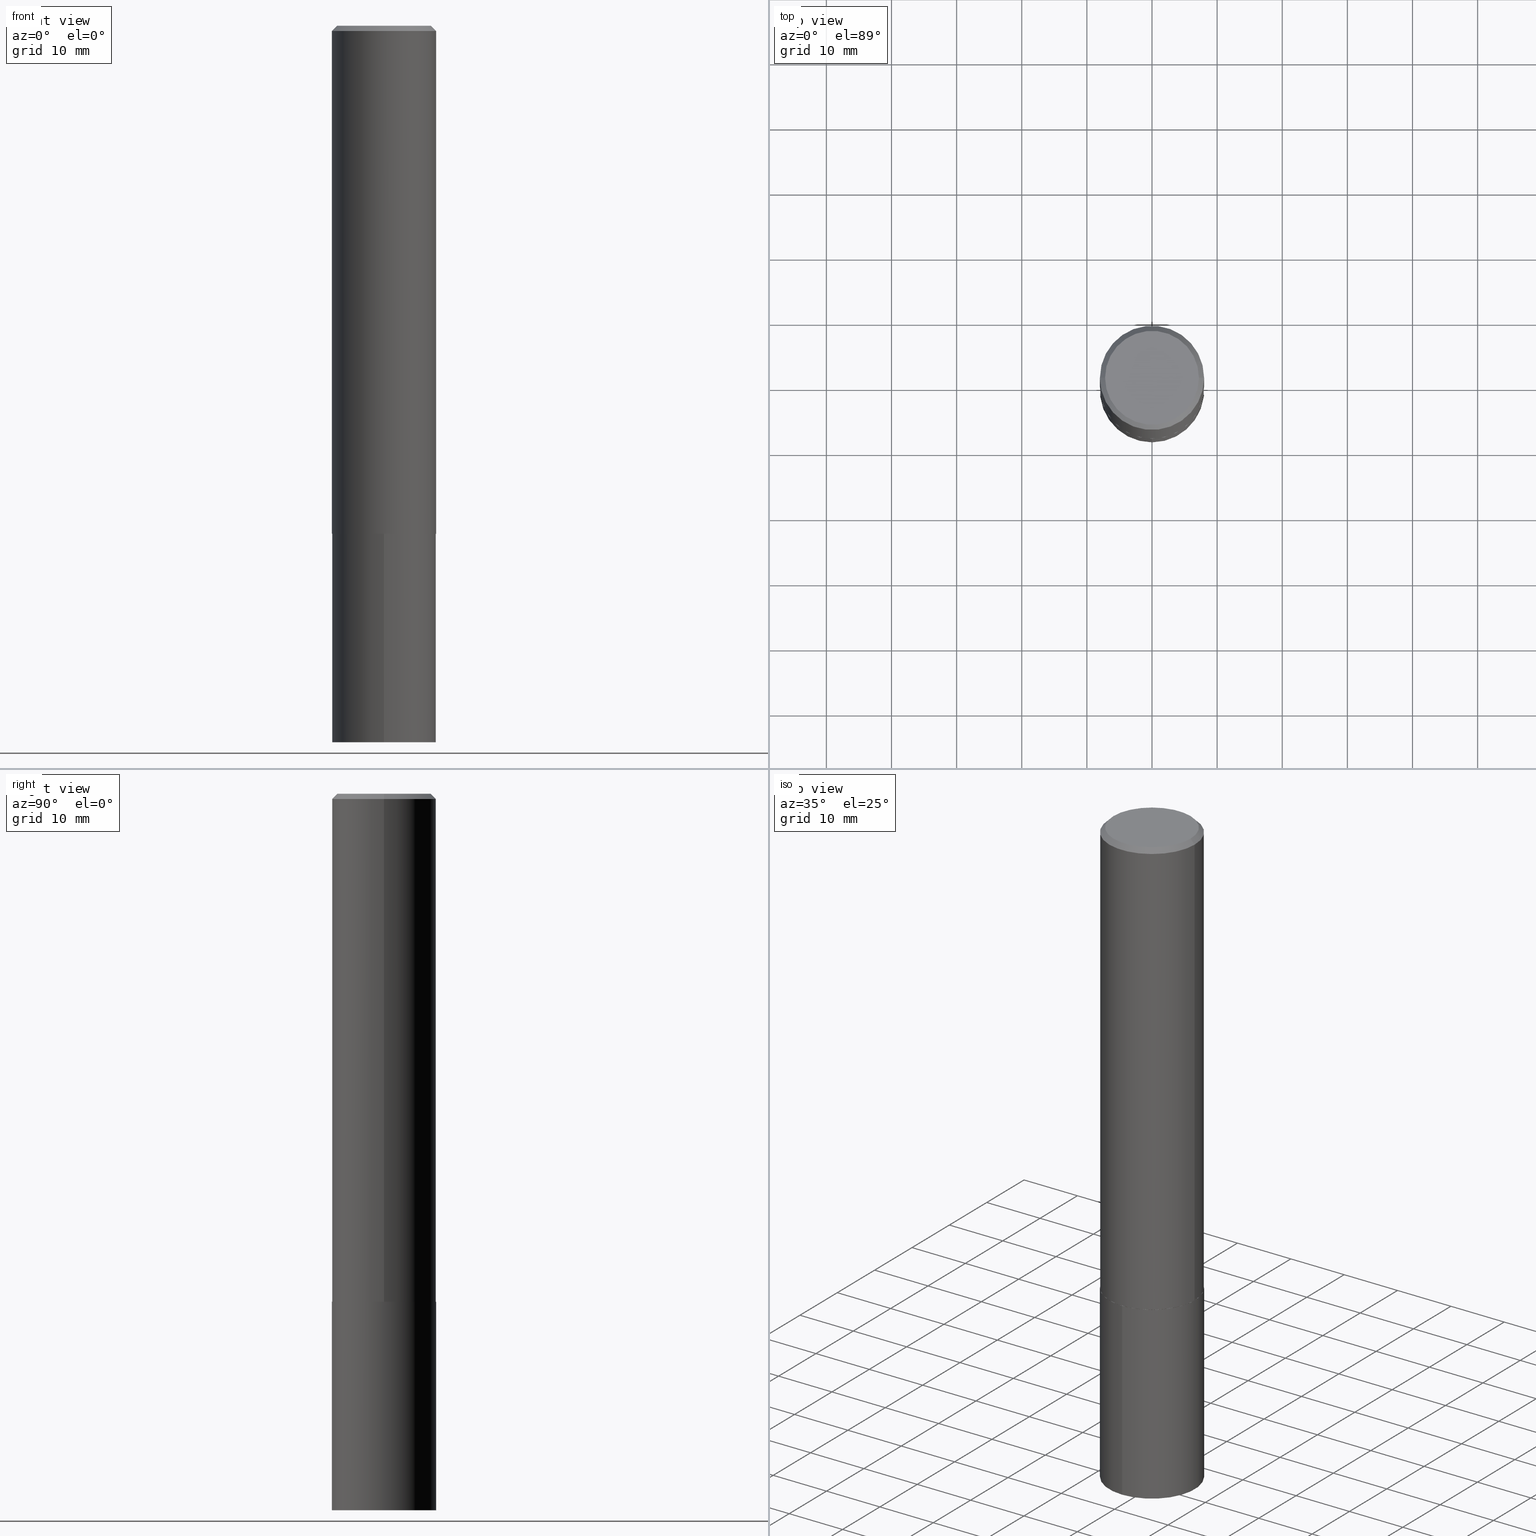
[diagram: canonical four-view strip — front | top / right | iso, engineering-drawing reading convention]
A machine part, canonical four-view strip (front | top / right | iso — engineering-drawing reading convention). The complete STEP part file that produces these views, byte-faithful:
ISO-10303-21;
HEADER;
FILE_DESCRIPTION (( 'STEP AP203' ),
    '1' );
FILE_NAME ('67176.STEP',
    '2024-04-23T12:52:31',
    ( '' ),
    ( '' ),
    'SwSTEP 2.0',
    'SolidWorks 2023',
    '' );
FILE_SCHEMA (( 'CONFIG_CONTROL_DESIGN' ));
ENDSEC;

DATA;
#1 = DIRECTION ( 'NONE',  ( 1.000000000000000000, -6.982962677686267499E-15, 0.000000000000000000 ) ) ;
#2 = DIRECTION ( 'NONE',  ( -6.982962677686265922E-15, -1.000000000000000000, 3.469564049740292770E-15 ) ) ;
#3 =( GEOMETRIC_REPRESENTATION_CONTEXT ( 3 ) GLOBAL_UNCERTAINTY_ASSIGNED_CONTEXT ( ( #295 ) ) GLOBAL_UNIT_ASSIGNED_CONTEXT ( ( #103, #358, #45 ) ) REPRESENTATION_CONTEXT ( 'NONE', 'WORKASPACE' ) );
#4 = DIRECTION ( 'NONE',  ( -1.000000000000000000, 6.982962677686266711E-15, 0.000000000000000000 ) ) ;
#5 = DIMENSIONAL_EXPONENTS ( 1.000000000000000000, 0.000000000000000000, 0.000000000000000000, 0.000000000000000000, 0.000000000000000000, 0.000000000000000000, 0.000000000000000000 ) ;
#6 = CARTESIAN_POINT ( 'NONE',  ( 7.642090019328596531E-31, -1.091087918388489404E-16, -0.03125000000000018041 ) ) ;
#7 = DIRECTION ( 'NONE',  ( -2.443450065282498059E-29, 3.494372290715320533E-15, 1.000000000000000000 ) ) ;
#8 = LOCAL_TIME ( 8, 52, 31.00000000000000000, #58 ) ;
#9 = CC_DESIGN_PERSON_AND_ORGANIZATION_ASSIGNMENT ( #190, #311, ( #13 ) ) ;
#10 = DIRECTION ( 'NONE',  ( -6.982962677686265922E-15, -1.000000000000000000, 3.469564049740292770E-15 ) ) ;
#11 = LINE ( 'NONE', #68, #229 ) ;
#12 = FACE_OUTER_BOUND ( 'NONE', #210, .T. ) ;
#13 = PRODUCT_DEFINITION_FORMATION_WITH_SPECIFIED_SOURCE ( 'ANY', '', #38, .NOT_KNOWN. ) ;
#14 = CARTESIAN_POINT ( 'NONE',  ( 7.509301063152699857E-29, -1.072129174718564879E-14, -3.070700000000000873 ) ) ;
#15 = CYLINDRICAL_SURFACE ( 'NONE', #197, 0.3149500000000002853 ) ;
#16 = ORIENTED_EDGE ( 'NONE', *, *, #195, .T. ) ;
#17 = CC_DESIGN_PERSON_AND_ORGANIZATION_ASSIGNMENT ( #47, #279, ( #54 ) ) ;
#18 = CARTESIAN_POINT ( 'NONE',  ( -0.2837000000000000077, 2.035620907579017403E-15, 4.818985154630794339E-18 ) ) ;
#19 = ORIENTED_EDGE ( 'NONE', *, *, #46, .T. ) ;
#20 = MECHANICAL_CONTEXT ( 'NONE', #101, 'mechanical' ) ;
#21 = CALENDAR_DATE ( 2024, 23, 4 ) ;
#22 = ORIENTED_EDGE ( 'NONE', *, *, #94, .F. ) ;
#23 = PERSON_AND_ORGANIZATION ( #109, #63 ) ;
#24 = AXIS2_PLACEMENT_3D ( 'NONE', #125, #121, #298 ) ;
#25 = LOCAL_TIME ( 8, 52, 31.00000000000000000, #309 ) ;
#26 = ORIENTED_EDGE ( 'NONE', *, *, #284, .F. ) ;
#27 = ORIENTED_EDGE ( 'NONE', *, *, #116, .F. ) ;
#28 = ORIENTED_EDGE ( 'NONE', *, *, #320, .F. ) ;
#29 = EDGE_CURVE ( 'NONE', #106, #359, #149, .T. ) ;
#30 = SHAPE_DEFINITION_REPRESENTATION ( #96, #42 ) ;
#31 = CARTESIAN_POINT ( 'NONE',  ( 7.508078328749607056E-29, -1.071954600651622650E-14, -3.070200000000000706 ) ) ;
#32 = AXIS2_PLACEMENT_3D ( 'NONE', #142, #60, #164 ) ;
#33 = DIRECTION ( 'NONE',  ( 0.7071067811863543939, -2.468850131080234027E-15, 0.7071067811867406405 ) ) ;
#34 = CARTESIAN_POINT ( 'NONE',  ( -0.3149500000000003963, -8.481691660239788936E-15, -3.070200000000000706 ) ) ;
#35 = PLANE ( 'NONE',  #271 ) ;
#36 = CLOSED_SHELL ( 'NONE', ( #156, #180, #365, #263, #348, #111, #189, #145 ) ) ;
#37 = LOCAL_TIME ( 8, 52, 31.00000000000000000, #166 ) ;
#38 = PRODUCT ( '67176', '67176', '', ( #20 ) ) ;
#39 = CARTESIAN_POINT ( 'NONE',  ( -2.199284095337214140E-15, -0.3149500000000107214, -3.070699999999999541 ) ) ;
#40 = DIRECTION ( 'NONE',  ( -2.438088387897960049E-29, 3.491481338843145188E-15, 1.000000000000000000 ) ) ;
#41 = CARTESIAN_POINT ( 'NONE',  ( 7.509301063152699857E-29, -1.072129174718564879E-14, -3.070700000000000873 ) ) ;
#42 = ADVANCED_BREP_SHAPE_REPRESENTATION ( '67176', ( #49, #291, #242 ), #3 ) ;
#43 = VECTOR ( 'NONE', #201, 39.37007874015748143 ) ;
#44 = DIRECTION ( 'NONE',  ( -2.443450065282497779E-29, 3.494372290715320533E-15, 1.000000000000000000 ) ) ;
#45 =( NAMED_UNIT ( * ) SI_UNIT ( $, .STERADIAN. ) SOLID_ANGLE_UNIT ( ) );
#46 = EDGE_CURVE ( 'NONE', #359, #244, #91, .T. ) ;
#47 = PERSON_AND_ORGANIZATION ( #109, #63 ) ;
#48 = VERTEX_POINT ( 'NONE', #137 ) ;
#49 = MANIFOLD_SOLID_BREP ( 'Body-Move/Copy2[1]', #276 ) ;
#50 =( LENGTH_UNIT ( ) NAMED_UNIT ( * ) SI_UNIT ( $, .METRE. ) );
#51 = ORIENTED_EDGE ( 'NONE', *, *, #238, .T. ) ;
#52 = APPROVAL_ROLE ( '' ) ;
#53 = ORIENTED_EDGE ( 'NONE', *, *, #302, .F. ) ;
#54 = PRODUCT_DEFINITION ( 'UNKNOWN', '', #13, #75 ) ;
#55 = EDGE_LOOP ( 'NONE', ( #364, #76, #248, #246 ) ) ;
#56 = CC_DESIGN_APPROVAL ( #69, ( #203 ) ) ;
#57 = ORIENTED_EDGE ( 'NONE', *, *, #302, .T. ) ;
#58 = COORDINATED_UNIVERSAL_TIME_OFFSET ( 5, 0, .BEHIND. ) ;
#59 = PLANE ( 'NONE',  #215 ) ;
#60 = DIRECTION ( 'NONE',  ( -2.445468806185136597E-29, 3.491481338843145583E-15, 1.000000000000000000 ) ) ;
#61 = CARTESIAN_POINT ( 'NONE',  ( 1.058804814540864683E-28, -1.512420083348695034E-14, -4.330700000000000216 ) ) ;
#62 = CIRCLE ( 'NONE', #89, 0.3149500000000000632 ) ;
#63 = ORGANIZATION ( 'UNSPECIFIED', 'UNSPECIFIED', '' ) ;
#64 = ADVANCED_FACE ( 'NONE', ( #85 ), #226, .T. ) ;
#65 = CARTESIAN_POINT ( 'NONE',  ( -5.892338936576605744E-47, 8.412698369802303245E-33, 2.409492577322419881E-18 ) ) ;
#66 = CARTESIAN_POINT ( 'NONE',  ( 1.583676628505946195E-28, -7.607737719022868426E-15, -4.330700000000000216 ) ) ;
#67 = DIRECTION ( 'NONE',  ( -2.445468806185136597E-29, 3.491481338843145583E-15, 1.000000000000000000 ) ) ;
#68 = CARTESIAN_POINT ( 'NONE',  ( 0.3149500000000000632, -2.269822636236993252E-15, -0.03125000000000018041 ) ) ;
#69 = APPROVAL ( #264, 'UNSPECIFIED' ) ;
#70 = CARTESIAN_POINT ( 'NONE',  ( 0.3149500000000000632, -2.308392887176138972E-15, -0.03125000000000018041 ) ) ;
#71 = DIRECTION ( 'NONE',  ( 6.982962677686265922E-15, 1.000000000000000000, -3.494372290715320533E-15 ) ) ;
#72 = CC_DESIGN_APPROVAL ( #107, ( #54 ) ) ;
#73 = DIRECTION ( 'NONE',  ( 1.000000000000000000, -6.982962677686267499E-15, 0.000000000000000000 ) ) ;
#74 = EDGE_CURVE ( 'NONE', #82, #281, #316, .T. ) ;
#75 = DESIGN_CONTEXT ( 'detailed design', #308, 'design' ) ;
#76 = ORIENTED_EDGE ( 'NONE', *, *, #94, .T. ) ;
#77 = ORIENTED_EDGE ( 'NONE', *, *, #29, .F. ) ;
#78 = AXIS2_PLACEMENT_3D ( 'NONE', #113, #7, #343 ) ;
#79 = APPROVAL_PERSON_ORGANIZATION ( #217, #250, #105 ) ;
#80 = ORIENTED_EDGE ( 'NONE', *, *, #353, .T. ) ;
#81 = DIRECTION ( 'NONE',  ( 1.000000000000000000, 0.000000000000000000, 0.000000000000000000 ) ) ;
#82 = VERTEX_POINT ( 'NONE', #115 ) ;
#83 = DIRECTION ( 'NONE',  ( -0.7071067811865462405, 2.468850131082243256E-15, -0.7071067811865487940 ) ) ;
#84 = CC_DESIGN_PERSON_AND_ORGANIZATION_ASSIGNMENT ( #356, #360, ( #38 ) ) ;
#85 = FACE_OUTER_BOUND ( 'NONE', #214, .T. ) ;
#86 = DIRECTION ( 'NONE',  ( 2.438088387897960049E-29, -3.491481338843145188E-15, -1.000000000000000000 ) ) ;
#87 = CALENDAR_DATE ( 2024, 23, 4 ) ;
#88 = CARTESIAN_POINT ( 'NONE',  ( 7.509301063152699857E-29, -1.072129174718564879E-14, -3.070700000000000873 ) ) ;
#89 = AXIS2_PLACEMENT_3D ( 'NONE', #181, #326, #146 ) ;
#90 = AXIS2_PLACEMENT_3D ( 'NONE', #273, #243, #73 ) ;
#91 = LINE ( 'NONE', #165, #258 ) ;
#92 = DIRECTION ( 'NONE',  ( -2.443450065282498339E-29, 3.494372290715320533E-15, 1.000000000000000000 ) ) ;
#93 = CARTESIAN_POINT ( 'NONE',  ( 0.000000000000000000, 0.000000000000000000, 0.000000000000000000 ) ) ;
#94 = EDGE_CURVE ( 'NONE', #48, #331, #257, .T. ) ;
#95 = AXIS2_PLACEMENT_3D ( 'NONE', #41, #327, #10 ) ;
#96 = PRODUCT_DEFINITION_SHAPE ( 'NONE', 'NONE',  #54 ) ;
#97 = CARTESIAN_POINT ( 'NONE',  ( -2.199284095337214140E-15, -0.3149500000000107214, -3.070699999999999541 ) ) ;
#98 = CARTESIAN_POINT ( 'NONE',  ( 7.509301063152699857E-29, -1.072129174718564879E-14, -3.070700000000000873 ) ) ;
#99 = ADVANCED_FACE ( 'NONE', ( #172 ), #265, .T. ) ;
#100 = DIRECTION ( 'NONE',  ( 1.000000000000000000, -6.982962677686265922E-15, 4.876176775795935793E-29 ) ) ;
#101 = APPLICATION_CONTEXT ( 'configuration controlled 3d designs of mechanical parts and assemblies' ) ;
#102 = AXIS2_PLACEMENT_3D ( 'NONE', #204, #67, #294 ) ;
#103 =( CONVERSION_BASED_UNIT ( 'INCH', #339 ) LENGTH_UNIT ( ) NAMED_UNIT ( #5 ) );
#104 = ORIENTED_EDGE ( 'NONE', *, *, #29, .T. ) ;
#105 = APPROVAL_ROLE ( '' ) ;
#106 = VERTEX_POINT ( 'NONE', #194 ) ;
#107 = APPROVAL ( #208, 'UNSPECIFIED' ) ;
#108 = ORIENTED_EDGE ( 'NONE', *, *, #238, .F. ) ;
#109 = PERSON ( 'UNSPECIFIED', 'UNSPECIFIED', 'UNSPECIFIED', ('UNSPECIFIED'), ('UNSPECIFIED'), ('UNSPECIFIED') ) ;
#110 = ORIENTED_EDGE ( 'NONE', *, *, #185, .T. ) ;
#111 = ADVANCED_FACE ( 'NONE', ( #230 ), #344, .T. ) ;
#112 = DIRECTION ( 'NONE',  ( -2.445468806185136597E-29, 3.491481338843145583E-15, 1.000000000000000000 ) ) ;
#113 = CARTESIAN_POINT ( 'NONE',  ( 7.509301063152699857E-29, -1.072129174718564879E-14, -3.070700000000000873 ) ) ;
#114 = DIRECTION ( 'NONE',  ( -2.445468806185136597E-29, 3.491481338843145583E-15, 1.000000000000000000 ) ) ;
#115 = CARTESIAN_POINT ( 'NONE',  ( 0.3144500000000005069, -1.291708436118409881E-14, -3.070700000000000873 ) ) ;
#116 = EDGE_CURVE ( 'NONE', #331, #281, #138, .T. ) ;
#117 = DIRECTION ( 'NONE',  ( 2.445468806185136597E-29, -3.491481338843145583E-15, -1.000000000000000000 ) ) ;
#118 = CIRCLE ( 'NONE', #102, 0.2837000000000000077 ) ;
#119 = DIRECTION ( 'NONE',  ( -2.445468806185136597E-29, 3.491481338843145583E-15, 1.000000000000000000 ) ) ;
#120 = CARTESIAN_POINT ( 'NONE',  ( 7.508078328749607056E-29, -1.071954600651622650E-14, -3.070200000000000706 ) ) ;
#121 = DIRECTION ( 'NONE',  ( 2.445468806185136597E-29, -3.491481338843145583E-15, -1.000000000000000000 ) ) ;
#122 = AXIS2_PLACEMENT_3D ( 'NONE', #88, #112, #321 ) ;
#123 = LINE ( 'NONE', #352, #43 ) ;
#124 = EDGE_CURVE ( 'NONE', #199, #274, #287, .T. ) ;
#125 = CARTESIAN_POINT ( 'NONE',  ( 7.642090019328596531E-31, -1.091087918388489404E-16, -0.03125000000000018041 ) ) ;
#126 = DIRECTION ( 'NONE',  ( -2.445468806185136597E-29, 3.491481338843145583E-15, 1.000000000000000000 ) ) ;
#127 = DATE_AND_TIME ( #21, #25 ) ;
#128 = EDGE_CURVE ( 'NONE', #281, #331, #168, .T. ) ;
#129 = ORIENTED_EDGE ( 'NONE', *, *, #255, .F. ) ;
#130 = APPROVAL_DATE_TIME ( #213, #250 ) ;
#131 = ORIENTED_EDGE ( 'NONE', *, *, #235, .T. ) ;
#132 = VECTOR ( 'NONE', #301, 39.37007874015748143 ) ;
#133 = AXIS2_PLACEMENT_3D ( 'NONE', #14, #351, #299 ) ;
#134 = COORDINATED_UNIVERSAL_TIME_OFFSET ( 5, 0, .BEHIND. ) ;
#135 = CARTESIAN_POINT ( 'NONE',  ( 0.000000000000000000, 0.000000000000000000, 0.000000000000000000 ) ) ;
#136 = DATE_AND_TIME ( #87, #37 ) ;
#137 = CARTESIAN_POINT ( 'NONE',  ( -0.3144500000000005069, -8.484340887413899348E-15, -3.070700000000000873 ) ) ;
#138 = CIRCLE ( 'NONE', #32, 0.3149500000000003963 ) ;
#139 = PERSON_AND_ORGANIZATION ( #109, #63 ) ;
#140 = DIRECTION ( 'NONE',  ( -1.000000000000000000, 6.982962677686265922E-15, -4.876176775795935793E-29 ) ) ;
#141 = DIRECTION ( 'NONE',  ( -2.443450065282498059E-29, 3.494372290715320533E-15, 1.000000000000000000 ) ) ;
#142 = CARTESIAN_POINT ( 'NONE',  ( 7.508078328749607056E-29, -1.071954600651622650E-14, -3.070200000000000706 ) ) ;
#143 = CARTESIAN_POINT ( 'NONE',  ( 7.509301063152699857E-29, -1.072129174718564879E-14, -3.070700000000000873 ) ) ;
#144 = AXIS2_PLACEMENT_3D ( 'NONE', #98, #119, #231 ) ;
#145 = ADVANCED_FACE ( 'NONE', ( #200 ), #317, .F. ) ;
#146 = DIRECTION ( 'NONE',  ( 1.000000000000000000, -6.982962677686266711E-15, 0.000000000000000000 ) ) ;
#147 = CARTESIAN_POINT ( 'NONE',  ( 2.237854346276525915E-15, 0.3149499999999849087, -4.330700000000001104 ) ) ;
#148 = DIRECTION ( 'NONE',  ( 0.7071067811865462405, -7.319954787623251312E-15, -0.7071067811865487940 ) ) ;
#149 = CIRCLE ( 'NONE', #240, 0.2837000000000000077 ) ;
#150 = CARTESIAN_POINT ( 'NONE',  ( -2.199284095337183375E-15, -0.3149500000000151068, -4.330699999999998440 ) ) ;
#151 = DIRECTION ( 'NONE',  ( 1.000000000000000000, -6.982962677686267499E-15, 0.000000000000000000 ) ) ;
#152 = EDGE_LOOP ( 'NONE', ( #77, #312, #80, #173 ) ) ;
#153 = COORDINATED_UNIVERSAL_TIME_OFFSET ( 5, 0, .BEHIND. ) ;
#154 = EDGE_LOOP ( 'NONE', ( #278, #241, #131, #212 ) ) ;
#155 = VECTOR ( 'NONE', #33, 39.37007874015748143 ) ;
#156 = ADVANCED_FACE ( 'NONE', ( #262 ), #182, .T. ) ;
#157 = ORIENTED_EDGE ( 'NONE', *, *, #297, .T. ) ;
#158 = DIRECTION ( 'NONE',  ( 0.000000000000000000, 0.000000000000000000, 1.000000000000000000 ) ) ;
#159 = EDGE_LOOP ( 'NONE', ( #51, #104 ) ) ;
#160 = ORIENTED_EDGE ( 'NONE', *, *, #124, .T. ) ;
#161 = CC_DESIGN_DATE_AND_TIME_ASSIGNMENT ( #127, #305, ( #54 ) ) ;
#162 = CIRCLE ( 'NONE', #133, 0.3149500000000000077 ) ;
#163 = PERSON_AND_ORGANIZATION_ROLE ( 'classification_officer' ) ;
#164 = DIRECTION ( 'NONE',  ( 1.000000000000000000, -6.982962677686267499E-15, 0.000000000000000000 ) ) ;
#165 = CARTESIAN_POINT ( 'NONE',  ( -0.3149500000000000632, 2.090175303498441559E-15, -0.03125000000000018041 ) ) ;
#166 = COORDINATED_UNIVERSAL_TIME_OFFSET ( 5, 0, .BEHIND. ) ;
#167 = VERTEX_POINT ( 'NONE', #283 ) ;
#168 = CIRCLE ( 'NONE', #269, 0.3149500000000003963 ) ;
#169 = EDGE_CURVE ( 'NONE', #82, #48, #249, .T. ) ;
#170 = DATE_AND_TIME ( #191, #8 ) ;
#171 = CIRCLE ( 'NONE', #355, 0.3149500000000000632 ) ;
#172 = FACE_OUTER_BOUND ( 'NONE', #313, .T. ) ;
#173 = ORIENTED_EDGE ( 'NONE', *, *, #46, .F. ) ;
#174 = FACE_OUTER_BOUND ( 'NONE', #333, .T. ) ;
#175 = ADVANCED_FACE ( 'NONE', ( #222 ), #59, .F. ) ;
#176 = CARTESIAN_POINT ( 'NONE',  ( 3.783565416908376271E-29, -1.605675724831132483E-14, -3.070700000000000873 ) ) ;
#177 = AXIS2_PLACEMENT_3D ( 'NONE', #268, #232, #328 ) ;
#178 = DIRECTION ( 'NONE',  ( -2.445468806185136877E-29, 3.491481338843145188E-15, 1.000000000000000000 ) ) ;
#179 = DIRECTION ( 'NONE',  ( 1.000000000000000000, -6.982962677686267499E-15, 4.876176775795936353E-29 ) ) ;
#180 = ADVANCED_FACE ( 'NONE', ( #272 ), #15, .T. ) ;
#181 = CARTESIAN_POINT ( 'NONE',  ( 7.642090019328596531E-31, -1.091087918388489404E-16, -0.03125000000000018041 ) ) ;
#182 = CONICAL_SURFACE ( 'NONE', #363, 0.3149500000000000632, 0.7853981633974465026 ) ;
#183 = CONICAL_SURFACE ( 'NONE', #192, 0.3149500000000003963, 0.7853981633971751641 ) ;
#184 = ORIENTED_EDGE ( 'NONE', *, *, #128, .T. ) ;
#185 = EDGE_CURVE ( 'NONE', #244, #187, #62, .T. ) ;
#186 = APPROVAL_STATUS ( 'not_yet_approved' ) ;
#187 = VERTEX_POINT ( 'NONE', #70 ) ;
#188 = AXIS2_PLACEMENT_3D ( 'NONE', #65, #86, #140 ) ;
#189 = ADVANCED_FACE ( 'NONE', ( #12 ), #345, .T. ) ;
#190 = PERSON_AND_ORGANIZATION ( #109, #63 ) ;
#191 = CALENDAR_DATE ( 2024, 23, 4 ) ;
#192 = AXIS2_PLACEMENT_3D ( 'NONE', #120, #126, #151 ) ;
#193 = ORIENTED_EDGE ( 'NONE', *, *, #353, .F. ) ;
#194 = CARTESIAN_POINT ( 'NONE',  ( 0.2837000000000000077, -2.108072959102388127E-15, 4.818985154659137865E-18 ) ) ;
#195 = EDGE_CURVE ( 'NONE', #199, #167, #234, .T. ) ;
#196 = DIRECTION ( 'NONE',  ( 1.000000000000000000, -6.982962677686267499E-15, 4.876309930827607477E-29 ) ) ;
#197 = AXIS2_PLACEMENT_3D ( 'NONE', #93, #202, #179 ) ;
#198 = CIRCLE ( 'NONE', #177, 0.3149500000000000077 ) ;
#199 = VERTEX_POINT ( 'NONE', #147 ) ;
#200 = FACE_OUTER_BOUND ( 'NONE', #159, .T. ) ;
#201 = DIRECTION ( 'NONE',  ( -2.445468806185136877E-29, 3.491481338843145188E-15, 1.000000000000000000 ) ) ;
#202 = DIRECTION ( 'NONE',  ( -2.445468806185136597E-29, 3.491481338843145583E-15, 1.000000000000000000 ) ) ;
#203 = SECURITY_CLASSIFICATION ( '', '', #221 ) ;
#204 = CARTESIAN_POINT ( 'NONE',  ( -1.178467787315321149E-46, 1.682539673960460649E-32, 4.818985154644839761E-18 ) ) ;
#205 = CARTESIAN_POINT ( 'NONE',  ( -0.3149500000000000632, -3.176473052901099843E-15, -0.03125000000000018041 ) ) ;
#206 = DIRECTION ( 'NONE',  ( 1.000000000000000000, -6.982962677686266711E-15, 0.000000000000000000 ) ) ;
#207 = APPROVAL_PERSON_ORGANIZATION ( #261, #69, #225 ) ;
#208 = APPROVAL_STATUS ( 'not_yet_approved' ) ;
#209 = EDGE_CURVE ( 'NONE', #106, #187, #11, .T. ) ;
#210 = EDGE_LOOP ( 'NONE', ( #218, #108, #19, #110 ) ) ;
#211 = CALENDAR_DATE ( 2024, 23, 4 ) ;
#212 = ORIENTED_EDGE ( 'NONE', *, *, #185, .F. ) ;
#213 = DATE_AND_TIME ( #335, #319 ) ;
#214 = EDGE_LOOP ( 'NONE', ( #361, #160, #342, #306 ) ) ;
#215 = AXIS2_PLACEMENT_3D ( 'NONE', #66, #44, #350 ) ;
#216 = VECTOR ( 'NONE', #178, 39.37007874015748143 ) ;
#217 = PERSON_AND_ORGANIZATION ( #109, #63 ) ;
#218 = ORIENTED_EDGE ( 'NONE', *, *, #209, .F. ) ;
#219 = PRODUCT_RELATED_PRODUCT_CATEGORY ( 'detail', '', ( #38 ) ) ;
#220 = ORIENTED_EDGE ( 'NONE', *, *, #284, .T. ) ;
#221 = SECURITY_CLASSIFICATION_LEVEL ( 'unclassified' ) ;
#222 = FACE_OUTER_BOUND ( 'NONE', #340, .T. ) ;
#223 = CIRCLE ( 'NONE', #144, 0.3144500000000005069 ) ;
#224 = ORIENTED_EDGE ( 'NONE', *, *, #124, .F. ) ;
#225 = APPROVAL_ROLE ( '' ) ;
#226 = CYLINDRICAL_SURFACE ( 'NONE', #325, 0.3149500000000000077 ) ;
#227 = CARTESIAN_POINT ( 'NONE',  ( 0.3149500000000003963, -1.291883010185351952E-14, -3.070200000000000706 ) ) ;
#228 = EDGE_CURVE ( 'NONE', #167, #277, #162, .T. ) ;
#229 = VECTOR ( 'NONE', #148, 39.37007874015748143 ) ;
#230 = FACE_OUTER_BOUND ( 'NONE', #154, .T. ) ;
#231 = DIRECTION ( 'NONE',  ( 1.000000000000000000, -6.982962677686266711E-15, 0.000000000000000000 ) ) ;
#232 = DIRECTION ( 'NONE',  ( -2.443450065282498059E-29, 3.494372290715320533E-15, 1.000000000000000000 ) ) ;
#233 = VECTOR ( 'NONE', #315, 39.37007874015748143 ) ;
#234 = LINE ( 'NONE', #322, #132 ) ;
#235 = EDGE_CURVE ( 'NONE', #281, #187, #237, .T. ) ;
#236 = CARTESIAN_POINT ( 'NONE',  ( 0.3149500000000003963, -1.291883010185351952E-14, -3.070200000000000706 ) ) ;
#237 = LINE ( 'NONE', #270, #216 ) ;
#238 = EDGE_CURVE ( 'NONE', #359, #106, #118, .T. ) ;
#239 = APPLICATION_PROTOCOL_DEFINITION ( 'international standard', 'config_control_design', 1994, #101 ) ;
#240 = AXIS2_PLACEMENT_3D ( 'NONE', #292, #114, #196 ) ;
#241 = ORIENTED_EDGE ( 'NONE', *, *, #116, .T. ) ;
#242 = AXIS2_PLACEMENT_3D ( 'NONE', #245, #158, #81 ) ;
#243 = DIRECTION ( 'NONE',  ( -2.445468806185136597E-29, 3.491481338843145583E-15, 1.000000000000000000 ) ) ;
#244 = VERTEX_POINT ( 'NONE', #205 ) ;
#245 = CARTESIAN_POINT ( 'NONE',  ( 0.000000000000000000, 0.000000000000000000, 0.000000000000000000 ) ) ;
#246 = ORIENTED_EDGE ( 'NONE', *, *, #74, .F. ) ;
#247 = PERSON_AND_ORGANIZATION ( #109, #63 ) ;
#248 = ORIENTED_EDGE ( 'NONE', *, *, #128, .F. ) ;
#249 = CIRCLE ( 'NONE', #122, 0.3144500000000005069 ) ;
#250 = APPROVAL ( #186, 'UNSPECIFIED' ) ;
#251 = CIRCLE ( 'NONE', #95, 0.3149500000000000077 ) ;
#252 = FACE_OUTER_BOUND ( 'NONE', #55, .T. ) ;
#253 = ORIENTED_EDGE ( 'NONE', *, *, #235, .F. ) ;
#254 = DIRECTION ( 'NONE',  ( 1.000000000000000000, -6.982962677686267499E-15, 4.876176775795936353E-29 ) ) ;
#255 = EDGE_CURVE ( 'NONE', #274, #199, #198, .T. ) ;
#256 = APPROVAL_DATE_TIME ( #136, #69 ) ;
#257 = LINE ( 'NONE', #34, #233 ) ;
#258 = VECTOR ( 'NONE', #83, 39.37007874015748143 ) ;
#259 = VECTOR ( 'NONE', #92, 39.37007874015748143 ) ;
#260 = DIRECTION ( 'NONE',  ( -2.445468806185136597E-29, 3.491481338843145583E-15, 1.000000000000000000 ) ) ;
#261 = PERSON_AND_ORGANIZATION ( #109, #63 ) ;
#262 = FACE_OUTER_BOUND ( 'NONE', #152, .T. ) ;
#263 = ADVANCED_FACE ( 'NONE', ( #323 ), #354, .F. ) ;
#264 = APPROVAL_STATUS ( 'not_yet_approved' ) ;
#265 = CYLINDRICAL_SURFACE ( 'NONE', #78, 0.3149500000000000077 ) ;
#266 = DIRECTION ( 'NONE',  ( 2.443450065282497779E-29, -3.494372290715320533E-15, -1.000000000000000000 ) ) ;
#267 = FACE_OUTER_BOUND ( 'NONE', #357, .T. ) ;
#268 = CARTESIAN_POINT ( 'NONE',  ( 1.058804814540864683E-28, -1.512420083348695034E-14, -4.330700000000000216 ) ) ;
#269 = AXIS2_PLACEMENT_3D ( 'NONE', #31, #341, #1 ) ;
#270 = CARTESIAN_POINT ( 'NONE',  ( 0.3149500000000002853, -2.199284095337291843E-15, 1.535751875536931531E-29 ) ) ;
#271 = AXIS2_PLACEMENT_3D ( 'NONE', #143, #266, #71 ) ;
#272 = FACE_OUTER_BOUND ( 'NONE', #310, .T. ) ;
#273 = CARTESIAN_POINT ( 'NONE',  ( 7.508078328749607056E-29, -1.071954600651622650E-14, -3.070200000000000706 ) ) ;
#274 = VERTEX_POINT ( 'NONE', #150 ) ;
#275 = APPLICATION_PROTOCOL_DEFINITION ( 'international standard', 'config_control_design', 1994, #308 ) ;
#276 = CLOSED_SHELL ( 'NONE', ( #99, #175, #64, #280 ) ) ;
#277 = VERTEX_POINT ( 'NONE', #97 ) ;
#278 = ORIENTED_EDGE ( 'NONE', *, *, #297, .F. ) ;
#279 = PERSON_AND_ORGANIZATION_ROLE ( 'creator' ) ;
#280 = ADVANCED_FACE ( 'NONE', ( #174 ), #35, .F. ) ;
#281 = VERTEX_POINT ( 'NONE', #236 ) ;
#282 = ORIENTED_EDGE ( 'NONE', *, *, #169, .F. ) ;
#283 = CARTESIAN_POINT ( 'NONE',  ( 2.237854346276541298E-15, 0.3149499999999892941, -3.070700000000001761 ) ) ;
#284 = EDGE_CURVE ( 'NONE', #277, #167, #251, .T. ) ;
#285 = CARTESIAN_POINT ( 'NONE',  ( 7.509301063152699857E-29, -1.072129174718564879E-14, -3.070700000000000873 ) ) ;
#286 = DIRECTION ( 'NONE',  ( -6.982962677686265922E-15, -1.000000000000000000, 3.469564049740292770E-15 ) ) ;
#287 = CIRCLE ( 'NONE', #336, 0.3149500000000000077 ) ;
#288 = AXIS2_PLACEMENT_3D ( 'NONE', #176, #40, #100 ) ;
#289 = DATE_TIME_ROLE ( 'classification_date' ) ;
#290 = DIRECTION ( 'NONE',  ( -2.443450065282498059E-29, 3.494372290715320533E-15, 1.000000000000000000 ) ) ;
#291 = MANIFOLD_SOLID_BREP ( 'Body-Move/Copy2[2]', #36 ) ;
#292 = CARTESIAN_POINT ( 'NONE',  ( -1.178467787315321149E-46, 1.682539673960460649E-32, 4.818985154644839761E-18 ) ) ;
#293 = CC_DESIGN_PERSON_AND_ORGANIZATION_ASSIGNMENT ( #139, #163, ( #203 ) ) ;
#294 = DIRECTION ( 'NONE',  ( 1.000000000000000000, -6.982962677686267499E-15, 4.876309930827607477E-29 ) ) ;
#295 = UNCERTAINTY_MEASURE_WITH_UNIT (LENGTH_MEASURE( 1.000000000000000082E-05 ), #103, 'distance_accuracy_value', 'NONE');
#296 = CARTESIAN_POINT ( 'NONE',  ( -0.3149500000000003963, -8.481691660239788936E-15, -3.070200000000000706 ) ) ;
#297 = EDGE_CURVE ( 'NONE', #331, #244, #123, .T. ) ;
#298 = DIRECTION ( 'NONE',  ( -1.000000000000000000, 6.982962677686266711E-15, 0.000000000000000000 ) ) ;
#299 = DIRECTION ( 'NONE',  ( -6.982962677686265922E-15, -1.000000000000000000, 3.469564049740292770E-15 ) ) ;
#300 = APPROVAL_PERSON_ORGANIZATION ( #23, #107, #52 ) ;
#301 = DIRECTION ( 'NONE',  ( -2.443450065282498339E-29, 3.494372290715320533E-15, 1.000000000000000000 ) ) ;
#302 = EDGE_CURVE ( 'NONE', #48, #82, #223, .T. ) ;
#303 = APPROVAL_DATE_TIME ( #332, #107 ) ;
#304 = ORIENTED_EDGE ( 'NONE', *, *, #255, .T. ) ;
#305 = DATE_TIME_ROLE ( 'creation_date' ) ;
#306 = ORIENTED_EDGE ( 'NONE', *, *, #228, .F. ) ;
#307 = CONICAL_SURFACE ( 'NONE', #90, 0.3149500000000003963, 0.7853981633971751641 ) ;
#308 = APPLICATION_CONTEXT ( 'configuration controlled 3d designs of mechanical parts and assemblies' ) ;
#309 = COORDINATED_UNIVERSAL_TIME_OFFSET ( 5, 0, .BEHIND. ) ;
#310 = EDGE_LOOP ( 'NONE', ( #184, #157, #193, #253 ) ) ;
#311 = PERSON_AND_ORGANIZATION_ROLE ( 'design_supplier' ) ;
#312 = ORIENTED_EDGE ( 'NONE', *, *, #209, .T. ) ;
#313 = EDGE_LOOP ( 'NONE', ( #304, #16, #26, #28 ) ) ;
#314 = CC_DESIGN_APPROVAL ( #250, ( #13 ) ) ;
#315 = DIRECTION ( 'NONE',  ( -0.7071067811863543939, 7.493145998869656807E-15, 0.7071067811867406405 ) ) ;
#316 = LINE ( 'NONE', #227, #155 ) ;
#317 = PLANE ( 'NONE',  #188 ) ;
#318 = AXIS2_PLACEMENT_3D ( 'NONE', #135, #260, #254 ) ;
#319 = LOCAL_TIME ( 8, 52, 31.00000000000000000, #153 ) ;
#320 = EDGE_CURVE ( 'NONE', #274, #277, #349, .T. ) ;
#321 = DIRECTION ( 'NONE',  ( 1.000000000000000000, -6.982962677686266711E-15, 0.000000000000000000 ) ) ;
#322 = CARTESIAN_POINT ( 'NONE',  ( 2.237854346276510532E-15, 0.3149499999999892941, -3.070700000000001761 ) ) ;
#323 = FACE_OUTER_BOUND ( 'NONE', #347, .T. ) ;
#324 = CC_DESIGN_PERSON_AND_ORGANIZATION_ASSIGNMENT ( #247, #362, ( #13 ) ) ;
#325 = AXIS2_PLACEMENT_3D ( 'NONE', #285, #290, #2 ) ;
#326 = DIRECTION ( 'NONE',  ( -2.445468806185136597E-29, 3.491481338843145583E-15, 1.000000000000000000 ) ) ;
#327 = DIRECTION ( 'NONE',  ( -2.443450065282498059E-29, 3.494372290715320533E-15, 1.000000000000000000 ) ) ;
#328 = DIRECTION ( 'NONE',  ( -6.982962677686265922E-15, -1.000000000000000000, 3.469564049740292770E-15 ) ) ;
#329 = CARTESIAN_POINT ( 'NONE',  ( 7.642090019328596531E-31, -1.091087918388489404E-16, -0.03125000000000018041 ) ) ;
#330 = DIRECTION ( 'NONE',  ( -2.445468806185136597E-29, 3.491481338843145583E-15, 1.000000000000000000 ) ) ;
#331 = VERTEX_POINT ( 'NONE', #296 ) ;
#332 = DATE_AND_TIME ( #211, #346 ) ;
#333 = EDGE_LOOP ( 'NONE', ( #220, #337 ) ) ;
#334 = CC_DESIGN_DATE_AND_TIME_ASSIGNMENT ( #170, #289, ( #203 ) ) ;
#335 = CALENDAR_DATE ( 2024, 23, 4 ) ;
#336 = AXIS2_PLACEMENT_3D ( 'NONE', #61, #141, #286 ) ;
#337 = ORIENTED_EDGE ( 'NONE', *, *, #228, .T. ) ;
#338 = CC_DESIGN_SECURITY_CLASSIFICATION ( #203, ( #13 ) ) ;
#339 = LENGTH_MEASURE_WITH_UNIT ( LENGTH_MEASURE( 0.02539999999999999897 ), #50 );
#340 = EDGE_LOOP ( 'NONE', ( #129, #224 ) ) ;
#341 = DIRECTION ( 'NONE',  ( -2.445468806185136597E-29, 3.491481338843145583E-15, 1.000000000000000000 ) ) ;
#342 = ORIENTED_EDGE ( 'NONE', *, *, #320, .T. ) ;
#343 = DIRECTION ( 'NONE',  ( -6.982962677686265922E-15, -1.000000000000000000, 3.469564049740292770E-15 ) ) ;
#344 = CYLINDRICAL_SURFACE ( 'NONE', #318, 0.3149500000000002853 ) ;
#345 = CONICAL_SURFACE ( 'NONE', #24, 0.3149500000000000632, 0.7853981633974465026 ) ;
#346 = LOCAL_TIME ( 8, 52, 31.00000000000000000, #134 ) ;
#347 = EDGE_LOOP ( 'NONE', ( #282, #53 ) ) ;
#348 = ADVANCED_FACE ( 'NONE', ( #267 ), #183, .T. ) ;
#349 = LINE ( 'NONE', #39, #259 ) ;
#350 = DIRECTION ( 'NONE',  ( -6.982962677686265922E-15, -1.000000000000000000, 3.494372290715320533E-15 ) ) ;
#351 = DIRECTION ( 'NONE',  ( -2.443450065282498059E-29, 3.494372290715320533E-15, 1.000000000000000000 ) ) ;
#352 = CARTESIAN_POINT ( 'NONE',  ( -0.3149500000000002853, 2.237854346276437562E-15, -1.549218606675783797E-29 ) ) ;
#353 = EDGE_CURVE ( 'NONE', #187, #244, #171, .T. ) ;
#354 = PLANE ( 'NONE',  #288 ) ;
#355 = AXIS2_PLACEMENT_3D ( 'NONE', #329, #330, #206 ) ;
#356 = PERSON_AND_ORGANIZATION ( #109, #63 ) ;
#357 = EDGE_LOOP ( 'NONE', ( #22, #57, #366, #27 ) ) ;
#358 =( NAMED_UNIT ( * ) PLANE_ANGLE_UNIT ( ) SI_UNIT ( $, .RADIAN. ) );
#359 = VERTEX_POINT ( 'NONE', #18 ) ;
#360 = PERSON_AND_ORGANIZATION_ROLE ( 'design_owner' ) ;
#361 = ORIENTED_EDGE ( 'NONE', *, *, #195, .F. ) ;
#362 = PERSON_AND_ORGANIZATION_ROLE ( 'creator' ) ;
#363 = AXIS2_PLACEMENT_3D ( 'NONE', #6, #117, #4 ) ;
#364 = ORIENTED_EDGE ( 'NONE', *, *, #169, .T. ) ;
#365 = ADVANCED_FACE ( 'NONE', ( #252 ), #307, .T. ) ;
#366 = ORIENTED_EDGE ( 'NONE', *, *, #74, .T. ) ;
ENDSEC;
END-ISO-10303-21;
